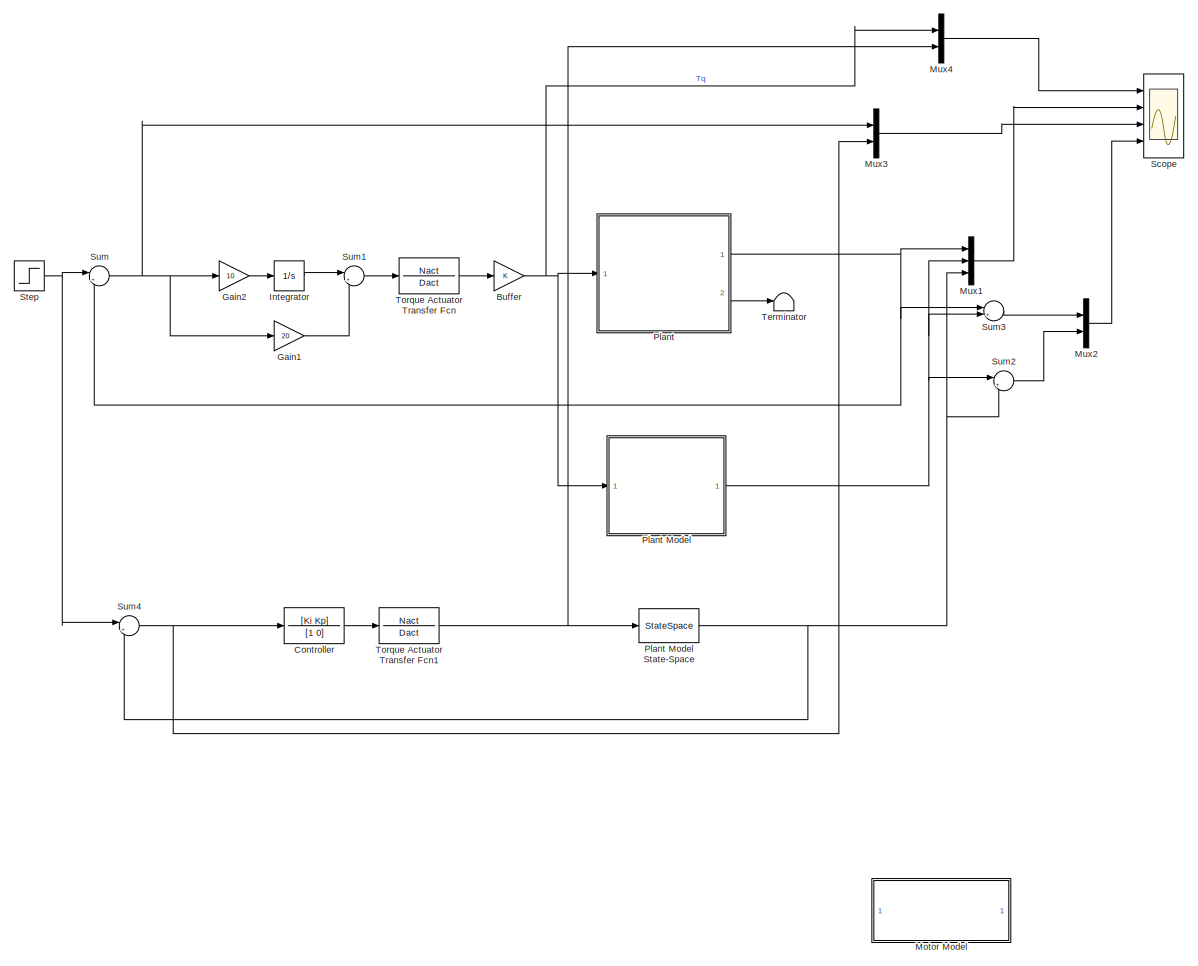
[diagram: root canvas - part 1/1, most of the canvas]
MODEL slx_182be9e07284
KIND model
CONFIG AbsTol = auto
CONFIG FixedStep = auto
CONFIG MaxStep = auto
CONFIG MinStep = auto
CONFIG RelTol = 1e-3
CONFIG SampleTimeConstraint = Unconstrained
CONFIG Solver = VariableStepAuto
CONFIG SolverMode = Auto
CONFIG SolverName = VariableStepAuto
CONFIG StartTime = 0.0
CONFIG StopTime = 0.05
BLOCK [Gain] Buffer
  OutDataTypeStr = Inherit: Inherit via internal rule
  ParamDataTypeStr = Inherit: Inherit via internal rule
  SaturateOnIntegerOverflow = off
BLOCK [TransferFcn] Controller
  Denominator = [1 0]
  Numerator = [Ki Kp]
BLOCK [Gain] Gain1
  Gain = 20
  OutDataTypeStr = Inherit: Inherit via internal rule
  ParamDataTypeStr = Inherit: Inherit via internal rule
  SaturateOnIntegerOverflow = off
BLOCK [Gain] Gain2
  Gain = 10
  OutDataTypeStr = Inherit: Inherit via internal rule
  ParamDataTypeStr = Inherit: Inherit via internal rule
  SaturateOnIntegerOverflow = off
BLOCK [Integrator] Integrator
  Ports = [1, 1]
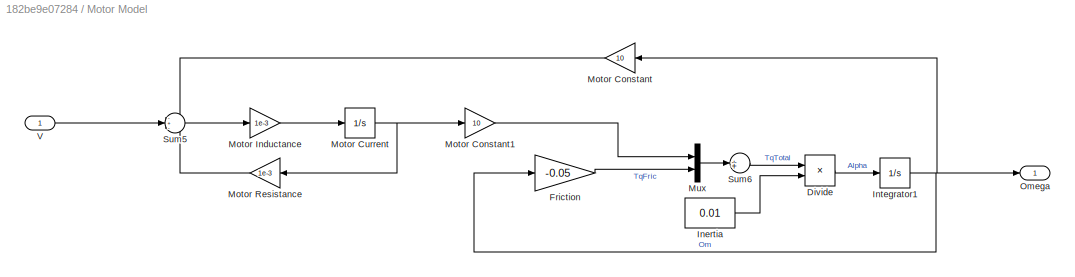
BLOCK [SubSystem] Motor Model
  Ports = [1, 1]
  RequestExecContextInheritance = off
  Variant = off
BLOCK [Product] Motor Model/Divide
  InputSameDT = off
  Inputs = */
  OutDataTypeStr = Inherit: Inherit via internal rule
  Ports = [2, 1]
  RndMeth = Floor
  SaturateOnIntegerOverflow = off
BLOCK [Gain] Motor Model/Friction
  Gain = -0.05
  OutDataTypeStr = Inherit: Inherit via internal rule
  ParamDataTypeStr = Inherit: Inherit via internal rule
  SaturateOnIntegerOverflow = off
BLOCK [Constant] Motor Model/Inertia
  Value = 0.01
BLOCK [Integrator] Motor Model/Integrator1
  Ports = [1, 1]
BLOCK [Gain] Motor Model/Motor Constant
  Gain = 10
  OutDataTypeStr = Inherit: Inherit via internal rule
  ParamDataTypeStr = Inherit: Inherit via internal rule
  SaturateOnIntegerOverflow = off
BLOCK [Gain] Motor Model/Motor Constant1
  Gain = 10
  OutDataTypeStr = Inherit: Inherit via internal rule
  ParamDataTypeStr = Inherit: Inherit via internal rule
  SaturateOnIntegerOverflow = off
BLOCK [Integrator] Motor Model/Motor Current
  Ports = [1, 1]
BLOCK [Gain] Motor Model/Motor Inductance
  Gain = 1e-3
  OutDataTypeStr = Inherit: Inherit via internal rule
  ParamDataTypeStr = Inherit: Inherit via internal rule
  SaturateOnIntegerOverflow = off
BLOCK [Gain] Motor Model/Motor Resistance
  Gain = 1e-3
  OutDataTypeStr = Inherit: Inherit via internal rule
  ParamDataTypeStr = Inherit: Inherit via internal rule
  SaturateOnIntegerOverflow = off
BLOCK [Mux] Motor Model/Mux
  DisplayOption = bar
  Inputs = 2
  Ports = [2, 1]
BLOCK [Outport] Motor Model/Omega
  IconDisplay = Port number
BLOCK [Sum] Motor Model/Sum5
  IconShape = round
  InputSameDT = off
  Inputs = -+-
  OutDataTypeStr = Inherit: Inherit via internal rule
  Ports = [3, 1]
  SaturateOnIntegerOverflow = off
BLOCK [Sum] Motor Model/Sum6
  IconShape = round
  InputSameDT = off
  Inputs = 1
  OutDataTypeStr = Inherit: Inherit via internal rule
  Ports = [1, 1]
  SaturateOnIntegerOverflow = off
BLOCK [Inport] Motor Model/V
  IconDisplay = Port number
BLOCK [Mux] Mux1
  DisplayOption = bar
  Inputs = 3
  Ports = [3, 1]
BLOCK [Mux] Mux2
  DisplayOption = bar
  Inputs = 2
  Ports = [2, 1]
BLOCK [Mux] Mux3
  DisplayOption = bar
  Inputs = 2
  Ports = [2, 1]
BLOCK [Mux] Mux4
  DisplayOption = bar
  Inputs = 2
  Ports = [2, 1]
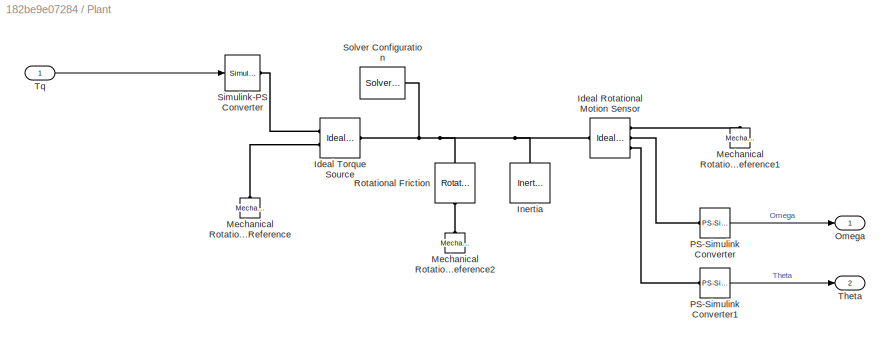
BLOCK [SubSystem] Plant
  Ports = [1, 2]
  RequestExecContextInheritance = off
  Variant = off
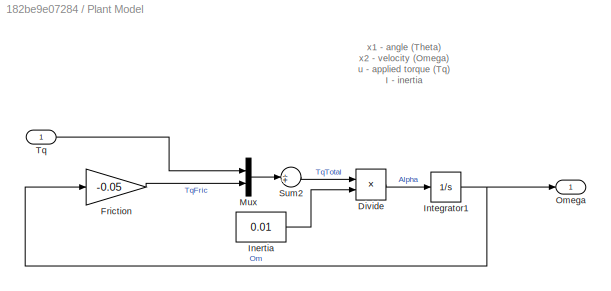
BLOCK [SubSystem] Plant Model
  Ports = [1, 1]
  RequestExecContextInheritance = off
  Variant = off
BLOCK [StateSpace] Plant Model State-Space
  A = Aplant
  B = Bplant
  C = Cplant
  D = Dplant
  Ports = [1, 1]
  X0 = 0
BLOCK [Product] Plant Model/Divide
  InputSameDT = off
  Inputs = */
  OutDataTypeStr = Inherit: Inherit via internal rule
  Ports = [2, 1]
  RndMeth = Floor
  SaturateOnIntegerOverflow = off
BLOCK [Gain] Plant Model/Friction
  Gain = -0.05
  OutDataTypeStr = Inherit: Inherit via internal rule
  ParamDataTypeStr = Inherit: Inherit via internal rule
  SaturateOnIntegerOverflow = off
BLOCK [Constant] Plant Model/Inertia
  Value = 0.01
BLOCK [Integrator] Plant Model/Integrator1
  Ports = [1, 1]
BLOCK [Mux] Plant Model/Mux
  DisplayOption = bar
  Inputs = 2
  Ports = [2, 1]
BLOCK [Outport] Plant Model/Omega
  IconDisplay = Port number
BLOCK [Sum] Plant Model/Sum2
  IconShape = round
  InputSameDT = off
  Inputs = 1
  OutDataTypeStr = Inherit: Inherit via internal rule
  Ports = [1, 1]
  SaturateOnIntegerOverflow = off
BLOCK [Inport] Plant Model/Tq
  IconDisplay = Port number
BLOCK [Reference] Plant/Ideal Rotational Motion Sensor  REF=fl_lib/Mechanical/Mechanical Sensors/Ideal Rotational
Motion Sensor
  Ports = [0, 0, 0, 0, 0, 1, 3]
  SourceBlock = fl_lib/Mechanical/Mechanical Sensors/Ideal Rotational\nMotion Sensor
  SourceType = Ideal Rotational\nMotion Sensor
BLOCK [Reference] Plant/Ideal Torque Source  REF=fl_lib/Mechanical/Mechanical Sources/Ideal Torque Source
  Ports = [0, 0, 0, 0, 0, 1, 2]
  SourceBlock = fl_lib/Mechanical/Mechanical Sources/Ideal Torque Source
  SourceType = Ideal Torque Source
BLOCK [Reference] Plant/Inertia  REF=fl_lib/Mechanical/Rotational Elements/Inertia
  AttributesFormatString = %<inertia>
  Ports = [0, 0, 0, 0, 0, 1]
  SourceBlock = fl_lib/Mechanical/Rotational Elements/Inertia
  SourceType = Inertia
BLOCK [Reference] Plant/Mechanical Rotational Reference  REF=fl_lib/Mechanical/Rotational Elements/Mechanical
Rotational Reference
  Ports = [0, 0, 0, 0, 0, 1]
  SourceBlock = fl_lib/Mechanical/Rotational Elements/Mechanical\nRotational Reference
  SourceType = Mechanical\nRotational Reference
BLOCK [Reference] Plant/Mechanical Rotational Reference1  REF=fl_lib/Mechanical/Rotational Elements/Mechanical
Rotational Reference
  Ports = [0, 0, 0, 0, 0, 1]
  SourceBlock = fl_lib/Mechanical/Rotational Elements/Mechanical\nRotational Reference
  SourceType = Mechanical\nRotational Reference
BLOCK [Reference] Plant/Mechanical Rotational Reference2  REF=fl_lib/Mechanical/Rotational Elements/Mechanical
Rotational Reference
  Ports = [0, 0, 0, 0, 0, 1]
  SourceBlock = fl_lib/Mechanical/Rotational Elements/Mechanical\nRotational Reference
  SourceType = Mechanical\nRotational Reference
BLOCK [Outport] Plant/Omega
  IconDisplay = Port number
BLOCK [Reference] Plant/PS-Simulink Converter  REF=nesl_utility/PS-Simulink
Converter
  Ports = [0, 1, 0, 0, 0, 1]
  SourceBlock = nesl_utility/PS-Simulink\nConverter
  SourceType = PS-Simulink\nConverter
BLOCK [Reference] Plant/PS-Simulink Converter1  REF=nesl_utility/PS-Simulink
Converter
  Ports = [0, 1, 0, 0, 0, 1]
  SourceBlock = nesl_utility/PS-Simulink\nConverter
  SourceType = PS-Simulink\nConverter
BLOCK [Reference] Plant/Rotational Friction  REF=fl_lib/Mechanical/Rotational Elements/Rotational Friction
  Ports = [0, 0, 0, 0, 0, 1, 1]
  SourceBlock = fl_lib/Mechanical/Rotational Elements/Rotational Friction
  SourceType = Rotational Friction
BLOCK [Reference] Plant/Simulink-PS Converter  REF=nesl_utility/Simulink-PS
Converter
  Ports = [1, 0, 0, 0, 0, 0, 1]
  SourceBlock = nesl_utility/Simulink-PS\nConverter
  SourceType = Simulink-PS\nConverter
BLOCK [Reference] Plant/Solver Configuration  REF=nesl_utility/Solver
Configuration
  Ports = [0, 0, 0, 0, 0, 0, 1]
  SourceBlock = nesl_utility/Solver\nConfiguration
  SourceType = Solver\nConfiguration
BLOCK [Outport] Plant/Theta
  IconDisplay = Port number
  Port = 2
BLOCK [Inport] Plant/Tq
  IconDisplay = Port number
BLOCK [Scope] Scope
  NumInputPorts = 4
  Ports = [4]
  ScopeSpecificationString = Simulink.scopes.TimeScopeBlockCfg('CurrentConfiguration', extmgr.ConfigurationSet(extmgr.Configuration('Core','General UI',true),extmgr.Configuration('Core','Source UI',true),extmgr.Configuration('Sources','WiredSimulink',true),extmgr.Configuration('Visuals','Time Domain',true,'SerializedDisplays',{struct('MinYLimReal','-5.73923','MaxYLimReal','12.7086','YLabelReal','','MinYLimMag','0.00000','MaxY...<+3323ch>
BLOCK [Step] Step
  SampleTime = 0
  Time = 0.01
BLOCK [Sum] Sum
  IconShape = round
  InputSameDT = off
  Inputs = |+-
  OutDataTypeStr = Inherit: Inherit via internal rule
  Ports = [2, 1]
  SaturateOnIntegerOverflow = off
BLOCK [Sum] Sum1
  IconShape = round
  InputSameDT = off
  Inputs = |++
  OutDataTypeStr = Inherit: Inherit via internal rule
  Ports = [2, 1]
  SaturateOnIntegerOverflow = off
BLOCK [Sum] Sum2
  IconShape = round
  InputSameDT = off
  Inputs = |+-
  OutDataTypeStr = Inherit: Inherit via internal rule
  Ports = [2, 1]
  SaturateOnIntegerOverflow = off
BLOCK [Sum] Sum3
  IconShape = round
  InputSameDT = off
  Inputs = |+-
  OutDataTypeStr = Inherit: Inherit via internal rule
  Ports = [2, 1]
  SaturateOnIntegerOverflow = off
BLOCK [Sum] Sum4
  IconShape = round
  InputSameDT = off
  Inputs = |+-
  OutDataTypeStr = Inherit: Inherit via internal rule
  Ports = [2, 1]
  SaturateOnIntegerOverflow = off
BLOCK [Terminator] Terminator
BLOCK [TransferFcn] Torque Actuator Transfer Fcn
  Denominator = Dact
  Numerator = Nact
BLOCK [TransferFcn] Torque Actuator Transfer Fcn1
  Denominator = Dact
  Numerator = Nact
ANNOTATION Plant Model: x1 - angle (Theta) x2 - velocity (Omega) u - applied torque (Tq) I - inertia
NET Buffer:1 -> Mux4:1, Plant Model:1, Plant:1
LINE Controller:1 -> Torque Actuator Transfer Fcn1:1
LINE Gain1:1 -> Sum1:2
LINE Gain2:1 -> Integrator:1
LINE Integrator:1 -> Sum1:1
LINE Motor Model/Divide:1 -> Motor Model/Integrator1:1
LINE Motor Model/Friction:1 -> Motor Model/Mux:2
LINE Motor Model/Inertia:1 -> Motor Model/Divide:2
NET Motor Model/Integrator1:1 -> Motor Model/Friction:1, Motor Model/Motor Constant:1, Motor Model/Omega:1
LINE Motor Model/Motor Constant1:1 -> Motor Model/Mux:1
LINE Motor Model/Motor Constant:1 -> Motor Model/Sum5:1
NET Motor Model/Motor Current:1 -> Motor Model/Motor Constant1:1, Motor Model/Motor Resistance:1
LINE Motor Model/Motor Inductance:1 -> Motor Model/Motor Current:1
LINE Motor Model/Motor Resistance:1 -> Motor Model/Sum5:3
LINE Motor Model/Mux:1 -> Motor Model/Sum6:1
LINE Motor Model/Sum5:1 -> Motor Model/Motor Inductance:1
LINE Motor Model/Sum6:1 -> Motor Model/Divide:1
LINE Motor Model/V:1 -> Motor Model/Sum5:2
LINE Mux1:1 -> Scope:2
LINE Mux2:1 -> Scope:4
LINE Mux3:1 -> Scope:3
LINE Mux4:1 -> Scope:1
NET Plant Model State-Space:1 -> Mux1:3, Sum2:2, Sum4:2
LINE Plant Model/Divide:1 -> Plant Model/Integrator1:1
LINE Plant Model/Friction:1 -> Plant Model/Mux:2
LINE Plant Model/Inertia:1 -> Plant Model/Divide:2
NET Plant Model/Integrator1:1 -> Plant Model/Friction:1, Plant Model/Omega:1
LINE Plant Model/Mux:1 -> Plant Model/Sum2:1
LINE Plant Model/Sum2:1 -> Plant Model/Divide:1
LINE Plant Model/Tq:1 -> Plant Model/Mux:1
NET Plant Model:1 -> Mux1:2, Sum2:1, Sum3:2
LINE Plant/PS-Simulink Converter1:1 -> Plant/Theta:1
LINE Plant/PS-Simulink Converter:1 -> Plant/Omega:1
LINE Plant/Tq:1 -> Plant/Simulink-PS Converter:1
NET Plant:1 -> Mux1:1, Sum3:1, Sum:2
LINE Plant:2 -> Terminator:1
NET Step:1 -> Sum4:1, Sum:1
LINE Sum1:1 -> Torque Actuator Transfer Fcn:1
LINE Sum2:1 -> Mux2:2
LINE Sum3:1 -> Mux2:1
NET Sum4:1 -> Controller:1, Mux3:2
NET Sum:1 -> Gain1:1, Gain2:1, Mux3:1
NET Torque Actuator Transfer Fcn1:1 -> Mux4:2, Plant Model State-Space:1
LINE Torque Actuator Transfer Fcn:1 -> Buffer:1
PNET net1: Plant/Ideal Rotational Motion Sensor:LConn1 -- Plant/Ideal Torque Source:LConn1 -- Plant/Inertia:LConn1 -- Plant/Rotational Friction:LConn1 -- Plant/Solver Configuration:RConn1
PLINE Plant/Ideal Rotational Motion Sensor:RConn1 -- Plant/Mechanical Rotational Reference1:LConn1
PLINE Plant/Ideal Rotational Motion Sensor:RConn2 -- Plant/PS-Simulink Converter:LConn1
PLINE Plant/Ideal Rotational Motion Sensor:RConn3 -- Plant/PS-Simulink Converter1:LConn1
PLINE Plant/Ideal Torque Source:RConn1 -- Plant/Simulink-PS Converter:RConn1
PLINE Plant/Ideal Torque Source:RConn2 -- Plant/Mechanical Rotational Reference:LConn1
PLINE Plant/Mechanical Rotational Reference2:LConn1 -- Plant/Rotational Friction:RConn1
note: NET lines group one-source signal fan-out (src -> all destinations, sorted); 1:1 wires keep LINE; PNET lines group multi-terminal physical nets as a canonical sorted terminal list (undirected conserving connections); 2-terminal nets keep the pairwise PLINE form
